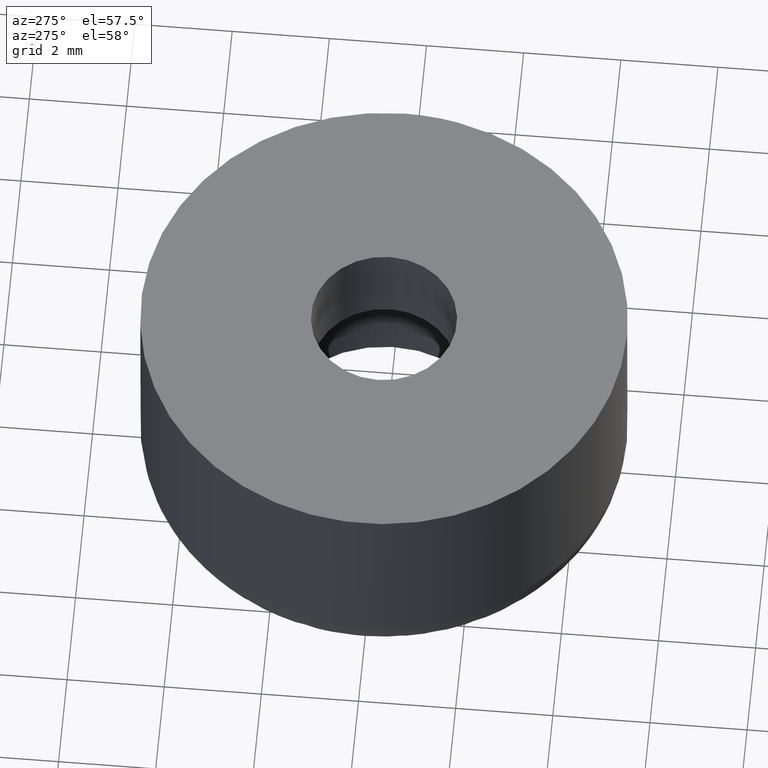
[diagram: clean part render]
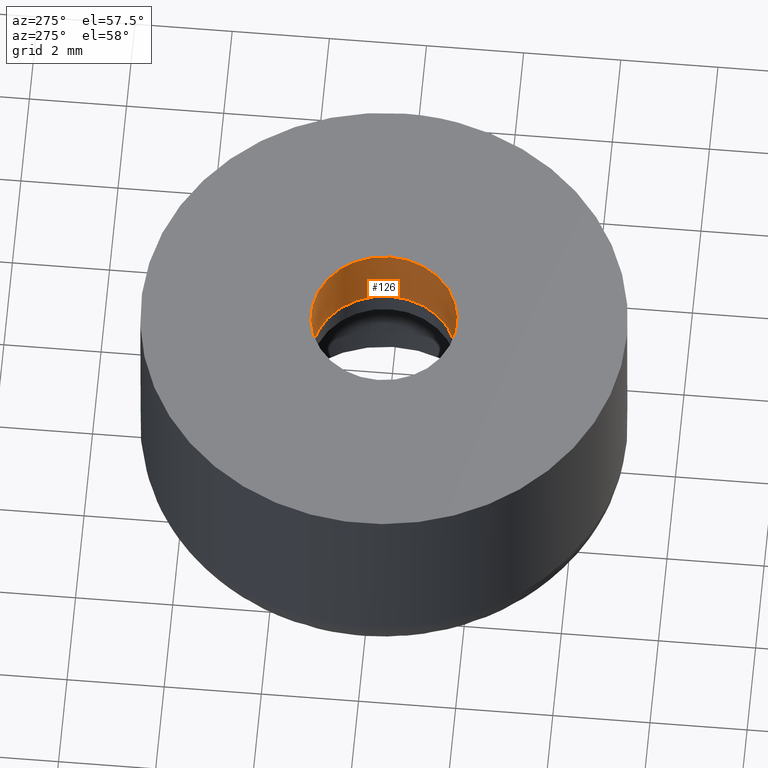
[diagram: same view with one face highlighted and labeled with its STEP entity id]
A machine part, auxiliary view. The second image highlights one B-rep face of the part: STEP entity #126.
In plain terms, the highlighted cylindrical surface (partial cylindrical patch) has radius 1.5 mm, axis along (0, 0, 1).
Its self-contained STEP definition (entity closure, byte-faithful):
#126=ADVANCED_FACE('',(#279),#278,.F.);
#278=CYLINDRICAL_SURFACE('',#417,1.50000000000E+000);
#279=FACE_OUTER_BOUND('',#418,.T.);
#414=CARTESIAN_POINT('',(5.40075811046E-015,1.02338567258E-015,5.03750000000E+000));
#415=DIRECTION('',(7.34716468017E-015,8.73321893594E-016,1.00000000000E+000));
#416=DIRECTION('',(1.18034234657E-001,-9.93009526364E-001,-2.87934230406E-029));
#417=AXIS2_PLACEMENT_3D('',#414,#415,#416);
#418=EDGE_LOOP('',(#562,#563,#564,#565));
#562=ORIENTED_EDGE('',*,*,#634,.T.);
#563=ORIENTED_EDGE('',*,*,#646,.T.);
#564=ORIENTED_EDGE('',*,*,#640,.F.);
#565=ORIENTED_EDGE('',*,*,#647,.F.);
#634=EDGE_CURVE('',#881,#873,#882,.T.);
#640=EDGE_CURVE('',#916,#923,#924,.T.);
#646=EDGE_CURVE('',#873,#923,#960,.T.);
#647=EDGE_CURVE('',#881,#916,#966,.T.);
#873=VERTEX_POINT('',#1195);
#881=VERTEX_POINT('',#1201);
#882=CIRCLE('',#1205,1.50000000000E+000);
#916=VERTEX_POINT('',#1226);
#923=VERTEX_POINT('',#1231);
#924=CIRCLE('',#1235,1.50000000000E+000);
#960=(BOUNDED_CURVE() B_SPLINE_CURVE(1,(#1248,#1249),.UNSPECIFIED.,.F.,.F.) B_SPLINE_CURVE_WITH_KNOTS((2,2),(8.33333134656E-002,9.16666653270E-001),.UNSPECIFIED.) CURVE() GEOMETRIC_REPRESENTATION_ITEM() RATIONAL_B_SPLINE_CURVE((1.00000000000E+000,1.00000000000E+000)) REPRESENTATION_ITEM('') );
#966=(BOUNDED_CURVE() B_SPLINE_CURVE(1,(#1250,#1251),.UNSPECIFIED.,.F.,.F.) B_SPLINE_CURVE_WITH_KNOTS((2,2),(8.33333333337E-002,9.16666666667E-001),.UNSPECIFIED.) CURVE() GEOMETRIC_REPRESENTATION_ITEM() RATIONAL_B_SPLINE_CURVE((7.50000000000E-001,7.50000000000E-001)) REPRESENTATION_ITEM('') );
#1195=CARTESIAN_POINT('',(1.77050807278E-001,-1.48951435429E+000,3.50000000000E+000));
#1201=CARTESIAN_POINT('',(-1.77308843490E-001,1.48948366020E+000,3.50000000000E+000));
#1202=CARTESIAN_POINT('',(2.58493226823E-012,1.17528209387E-012,3.50000000000E+000));
#1203=DIRECTION('',(3.29795403702E-013,4.90394143581E-014,-1.00000000000E+000));
#1204=DIRECTION('',(-1.00000000000E+000,-7.83789699810E-013,-3.29795403702E-013));
#1205=AXIS2_PLACEMENT_3D('',#1202,#1203,#1204);
#1226=CARTESIAN_POINT('',(-1.77308843490E-001,1.48948366020E+000,5.00000000000E+000));
#1231=CARTESIAN_POINT('',(1.77050807278E-001,-1.48951435429E+000,5.00000000000E+000));
#1232=CARTESIAN_POINT('',(1.50068846239E-012,-2.33923991289E-013,5.00000000000E+000));
#1233=DIRECTION('',(-1.77635683940E-015,6.28036983474E-016,-1.00000000000E+000));
#1234=DIRECTION('',(-1.00000000000E+000,1.55801297789E-013,1.77635683940E-015));
#1235=AXIS2_PLACEMENT_3D('',#1232,#1233,#1234);
#1248=CARTESIAN_POINT('',(1.77051351985E-001,-1.48951428955E+000,3.49999996424E+000));
#1249=CARTESIAN_POINT('',(1.77051351985E-001,-1.48951428955E+000,4.99999997589E+000));
#1250=CARTESIAN_POINT('',(-1.77051351985E-001,1.48951428955E+000,3.50000000000E+000));
#1251=CARTESIAN_POINT('',(-1.77051351985E-001,1.48951428955E+000,5.00000000000E+000));